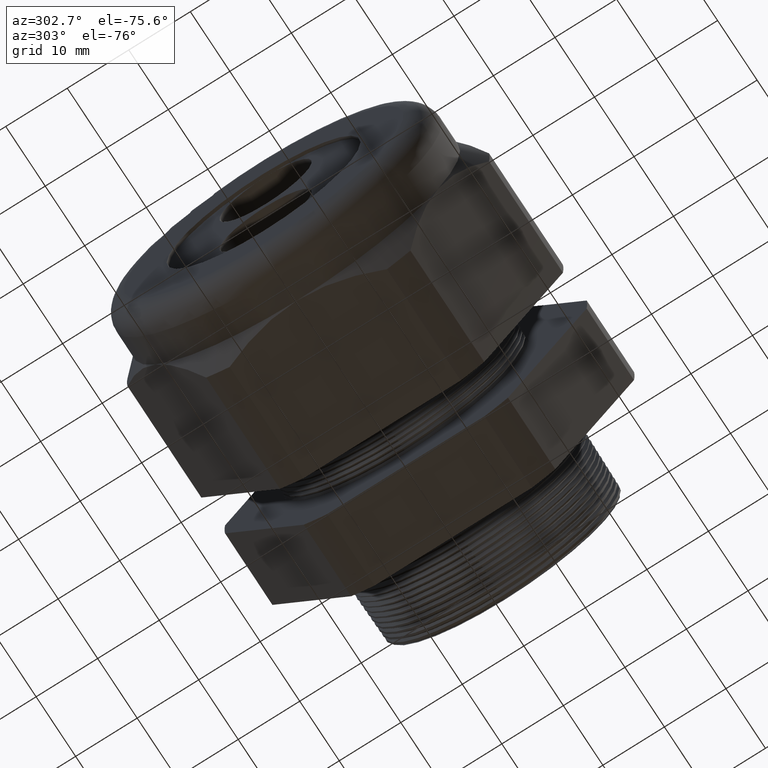
[diagram: clean part render]
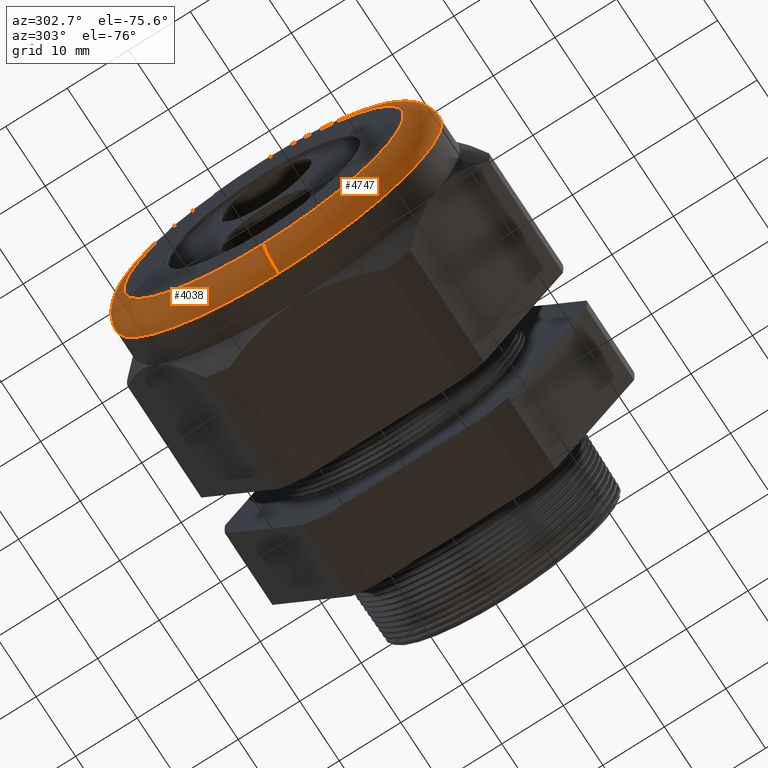
[diagram: same view with one multi-face feature highlighted, each face labeled with its STEP entity id]
A machine part, auxiliary view. The highlighted faces form ONE feature: a constant-radius fillet chain: 2 tangent blend faces with common blend radius 3.81 mm. The faces share edges in the B-rep.
Their STEP definitions:
[1] entity #4038 (Torus):
#1418 = DIRECTION ( 'NONE',  ( 0.0000000000000000000, 0.0000000000000000000, -1.000000000000000000 ) ) ;
#1419 = DIRECTION ( 'NONE',  ( 0.0000000000000000000, -1.000000000000000000, 0.0000000000000000000 ) ) ;
#1420 = CARTESIAN_POINT ( 'NONE',  ( -2.049999999999999800, 0.0000000000000000000, 0.8949999999999999100 ) ) ;
#1421 = AXIS2_PLACEMENT_3D ( 'NONE', #1420, #1419, #1418 ) ;
#1422 = CIRCLE ( 'NONE', #1421, 0.1500000000000000500 ) ;
#1461 = DIRECTION ( 'NONE',  ( 0.0000000000000000000, 0.0000000000000000000, 1.000000000000000000 ) ) ;
#1462 = DIRECTION ( 'NONE',  ( -1.000000000000000000, 0.0000000000000000000, 0.0000000000000000000 ) ) ;
#1463 = AXIS2_PLACEMENT_3D ( 'NONE', #1470, #1462, #1461 ) ;
#1464 = TOROIDAL_SURFACE ( 'NONE', #1463, 0.8949999999999999100, 0.1499999999999999900 ) ;
#1465 = FACE_OUTER_BOUND ( 'NONE', #4078, .T. ) ;
#1470 = CARTESIAN_POINT ( 'NONE',  ( -2.049999999999999800, 0.0000000000000000000, 0.0000000000000000000 ) ) ;
#1588 = CARTESIAN_POINT ( 'NONE',  ( -2.200000000000000200, 0.0000000000000000000, 0.8949999999999999100 ) ) ;
#1589 = CARTESIAN_POINT ( 'NONE',  ( -2.049999999999999800, 1.279755905108984100E-016, 1.044999999999999900 ) ) ;
#1590 = CARTESIAN_POINT ( 'NONE',  ( -2.049999999999999800, 0.0000000000000000000, -1.044999999999999900 ) ) ;
#1614 = DIRECTION ( 'NONE',  ( 0.0000000000000000000, 0.0000000000000000000, 1.000000000000000000 ) ) ;
#1615 = DIRECTION ( 'NONE',  ( -1.000000000000000000, 0.0000000000000000000, 0.0000000000000000000 ) ) ;
#1616 = CARTESIAN_POINT ( 'NONE',  ( -2.200000000000000200, 0.0000000000000000000, 0.0000000000000000000 ) ) ;
#1617 = AXIS2_PLACEMENT_3D ( 'NONE', #1616, #1615, #1614 ) ;
#1618 = CIRCLE ( 'NONE', #1617, 0.8949999999999999100 ) ;
#1652 = DIRECTION ( 'NONE',  ( 0.0000000000000000000, 0.0000000000000000000, 1.000000000000000000 ) ) ;
#1653 = DIRECTION ( 'NONE',  ( 1.000000000000000000, 0.0000000000000000000, 0.0000000000000000000 ) ) ;
#1654 = CARTESIAN_POINT ( 'NONE',  ( -2.049999999999999800, 0.0000000000000000000, 0.0000000000000000000 ) ) ;
#1655 = AXIS2_PLACEMENT_3D ( 'NONE', #1654, #1653, #1652 ) ;
#1656 = CIRCLE ( 'NONE', #1655, 1.044999999999999900 ) ;
#1667 = CARTESIAN_POINT ( 'NONE',  ( -2.200000000000000200, 1.187907395172932400E-016, -0.8949999999999999100 ) ) ;
#1668 = DIRECTION ( 'NONE',  ( 0.0000000000000000000, -1.224646799147352500E-016, 1.000000000000000000 ) ) ;
#1669 = DIRECTION ( 'NONE',  ( 0.0000000000000000000, 1.000000000000000000, 1.224646799147353200E-016 ) ) ;
#1670 = CARTESIAN_POINT ( 'NONE',  ( -2.049999999999999800, 1.096058885236880900E-016, -0.8949999999999999100 ) ) ;
#1671 = AXIS2_PLACEMENT_3D ( 'NONE', #1670, #1669, #1668 ) ;
#1672 = CIRCLE ( 'NONE', #1671, 0.1500000000000000500 ) ;
#4029 = EDGE_CURVE ( 'NONE', #4107, #4108, #1422, .T. ) ;
#4038 = ADVANCED_FACE ( 'NONE', ( #1465 ), #1464, .T. ) ;
#4078 = EDGE_LOOP ( 'NONE', ( #4140, #4137, #4129, #4109 ) ) ;
#4106 = VERTEX_POINT ( 'NONE', #1590 ) ;
#4107 = VERTEX_POINT ( 'NONE', #1589 ) ;
#4108 = VERTEX_POINT ( 'NONE', #1588 ) ;
#4109 = ORIENTED_EDGE ( 'NONE', *, *, #4029, .F. ) ;
#4129 = ORIENTED_EDGE ( 'NONE', *, *, #4130, .F. ) ;
#4130 = EDGE_CURVE ( 'NONE', #4108, #4139, #1618, .T. ) ;
#4137 = ORIENTED_EDGE ( 'NONE', *, *, #4138, .T. ) ;
#4138 = EDGE_CURVE ( 'NONE', #4106, #4139, #1672, .T. ) ;
#4139 = VERTEX_POINT ( 'NONE', #1667 ) ;
#4140 = ORIENTED_EDGE ( 'NONE', *, *, #4144, .F. ) ;
#4144 = EDGE_CURVE ( 'NONE', #4106, #4107, #1656, .T. ) ;
[2] entity #4747 (Torus):
#522 = DIRECTION ( 'NONE',  ( 0.0000000000000000000, 0.0000000000000000000, 1.000000000000000000 ) ) ;
#523 = DIRECTION ( 'NONE',  ( 1.000000000000000000, 0.0000000000000000000, 0.0000000000000000000 ) ) ;
#524 = CARTESIAN_POINT ( 'NONE',  ( -2.049999999999999800, 0.0000000000000000000, 0.0000000000000000000 ) ) ;
#525 = AXIS2_PLACEMENT_3D ( 'NONE', #524, #523, #522 ) ;
#530 = CIRCLE ( 'NONE', #525, 1.044999999999999900 ) ;
#1418 = DIRECTION ( 'NONE',  ( 0.0000000000000000000, 0.0000000000000000000, -1.000000000000000000 ) ) ;
#1419 = DIRECTION ( 'NONE',  ( 0.0000000000000000000, -1.000000000000000000, 0.0000000000000000000 ) ) ;
#1420 = CARTESIAN_POINT ( 'NONE',  ( -2.049999999999999800, 0.0000000000000000000, 0.8949999999999999100 ) ) ;
#1421 = AXIS2_PLACEMENT_3D ( 'NONE', #1420, #1419, #1418 ) ;
#1422 = CIRCLE ( 'NONE', #1421, 0.1500000000000000500 ) ;
#1588 = CARTESIAN_POINT ( 'NONE',  ( -2.200000000000000200, 0.0000000000000000000, 0.8949999999999999100 ) ) ;
#1589 = CARTESIAN_POINT ( 'NONE',  ( -2.049999999999999800, 1.279755905108984100E-016, 1.044999999999999900 ) ) ;
#1590 = CARTESIAN_POINT ( 'NONE',  ( -2.049999999999999800, 0.0000000000000000000, -1.044999999999999900 ) ) ;
#1667 = CARTESIAN_POINT ( 'NONE',  ( -2.200000000000000200, 1.187907395172932400E-016, -0.8949999999999999100 ) ) ;
#1668 = DIRECTION ( 'NONE',  ( 0.0000000000000000000, -1.224646799147352500E-016, 1.000000000000000000 ) ) ;
#1669 = DIRECTION ( 'NONE',  ( 0.0000000000000000000, 1.000000000000000000, 1.224646799147353200E-016 ) ) ;
#1670 = CARTESIAN_POINT ( 'NONE',  ( -2.049999999999999800, 1.096058885236880900E-016, -0.8949999999999999100 ) ) ;
#1671 = AXIS2_PLACEMENT_3D ( 'NONE', #1670, #1669, #1668 ) ;
#1672 = CIRCLE ( 'NONE', #1671, 0.1500000000000000500 ) ;
#2610 = DIRECTION ( 'NONE',  ( 0.0000000000000000000, 0.0000000000000000000, 1.000000000000000000 ) ) ;
#2611 = DIRECTION ( 'NONE',  ( -1.000000000000000000, 0.0000000000000000000, 0.0000000000000000000 ) ) ;
#2612 = CARTESIAN_POINT ( 'NONE',  ( -2.200000000000000200, 0.0000000000000000000, 0.0000000000000000000 ) ) ;
#2613 = AXIS2_PLACEMENT_3D ( 'NONE', #2612, #2611, #2610 ) ;
#2614 = CIRCLE ( 'NONE', #2613, 0.8949999999999999100 ) ;
#2693 = FACE_OUTER_BOUND ( 'NONE', #4748, .T. ) ;
#2751 = DIRECTION ( 'NONE',  ( 0.0000000000000000000, 0.0000000000000000000, 1.000000000000000000 ) ) ;
#2752 = DIRECTION ( 'NONE',  ( -1.000000000000000000, 0.0000000000000000000, 0.0000000000000000000 ) ) ;
#2753 = CARTESIAN_POINT ( 'NONE',  ( -2.049999999999999800, 0.0000000000000000000, 0.0000000000000000000 ) ) ;
#2754 = AXIS2_PLACEMENT_3D ( 'NONE', #2753, #2752, #2751 ) ;
#2755 = TOROIDAL_SURFACE ( 'NONE', #2754, 0.8949999999999999100, 0.1499999999999999900 ) ;
#3580 = EDGE_CURVE ( 'NONE', #4107, #4106, #530, .T. ) ;
#4029 = EDGE_CURVE ( 'NONE', #4107, #4108, #1422, .T. ) ;
#4106 = VERTEX_POINT ( 'NONE', #1590 ) ;
#4107 = VERTEX_POINT ( 'NONE', #1589 ) ;
#4108 = VERTEX_POINT ( 'NONE', #1588 ) ;
#4138 = EDGE_CURVE ( 'NONE', #4106, #4139, #1672, .T. ) ;
#4139 = VERTEX_POINT ( 'NONE', #1667 ) ;
#4655 = EDGE_CURVE ( 'NONE', #4139, #4108, #2614, .T. ) ;
#4747 = ADVANCED_FACE ( 'NONE', ( #2693 ), #2755, .T. ) ;
#4748 = EDGE_LOOP ( 'NONE', ( #4749, #4750, #4751, #4752 ) ) ;
#4749 = ORIENTED_EDGE ( 'NONE', *, *, #4138, .F. ) ;
#4750 = ORIENTED_EDGE ( 'NONE', *, *, #3580, .F. ) ;
#4751 = ORIENTED_EDGE ( 'NONE', *, *, #4029, .T. ) ;
#4752 = ORIENTED_EDGE ( 'NONE', *, *, #4655, .F. ) ;